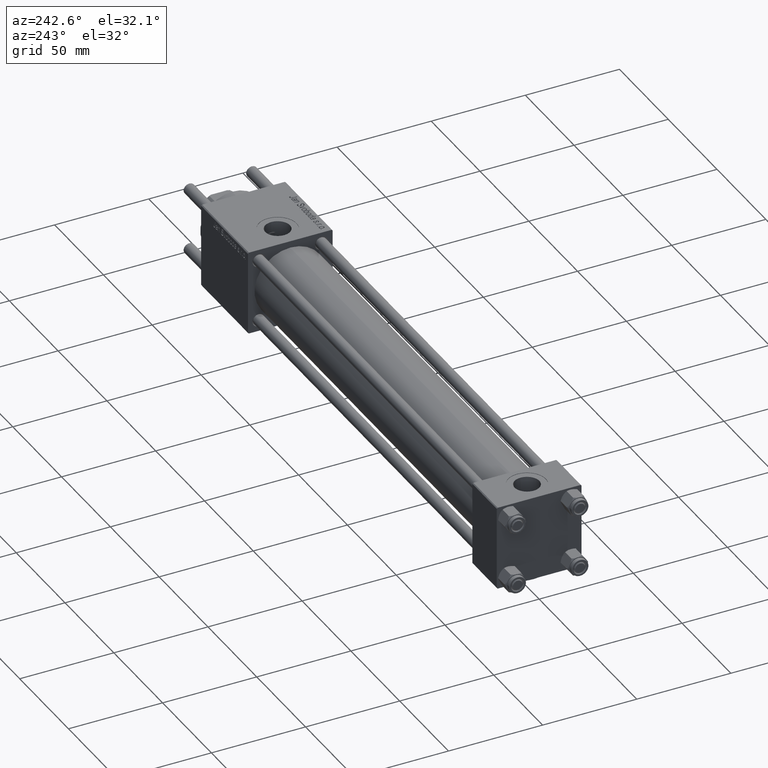
[diagram: clean part render]
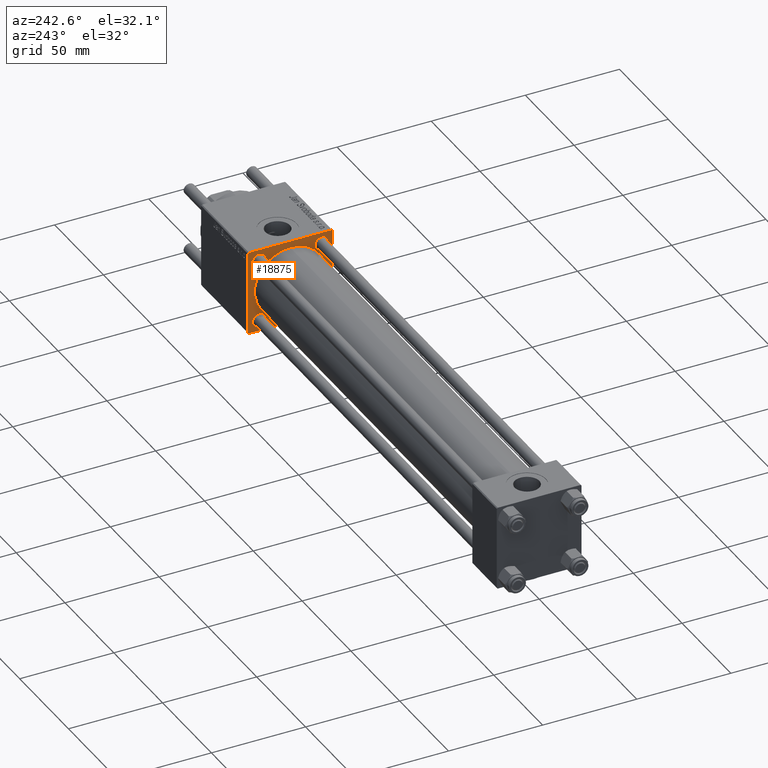
[diagram: same view with one face highlighted and labeled with its STEP entity id]
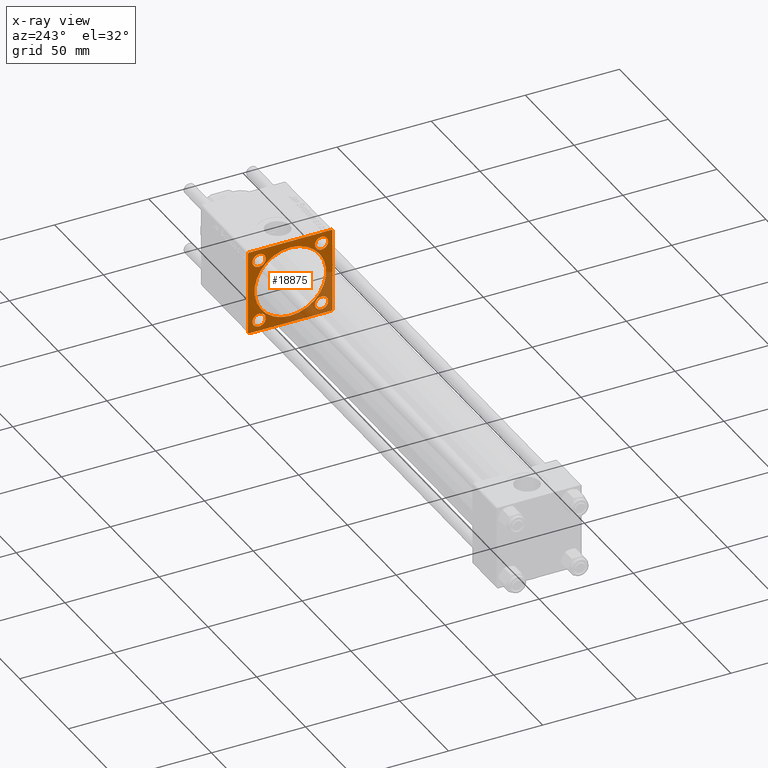
[diagram: x-ray of the same camera — body ghosted, the highlighted face saturated]
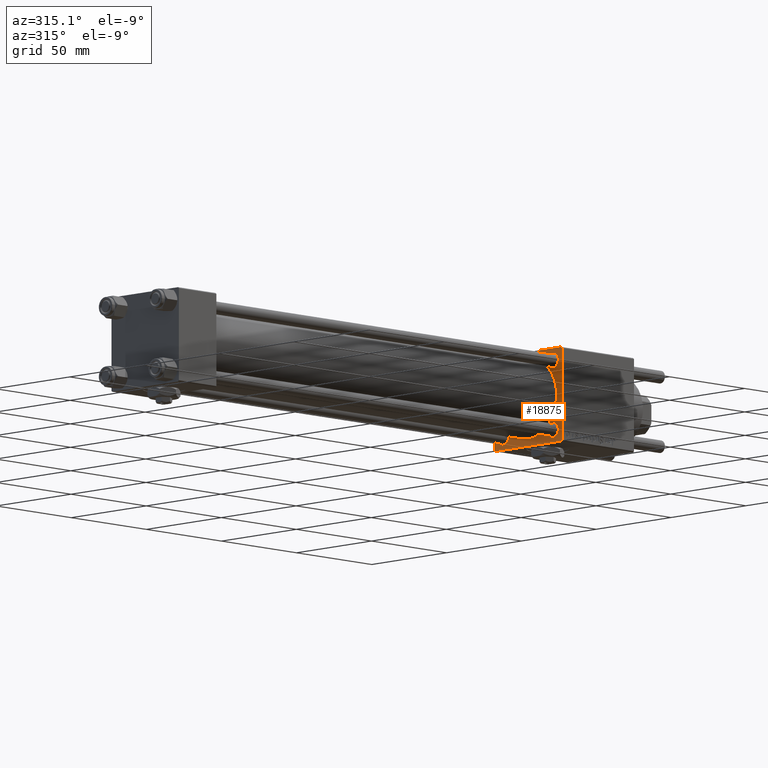
[diagram: same view with one face highlighted and labeled with its STEP entity id]
A machine part, auxiliary view. The second image highlights one B-rep face of the part: STEP entity #18875.
The next image is the same camera in x-ray: the body ghosted, the highlighted face saturated — about 27% of this face is hidden behind the body in this view.
A second angle (auxiliary view) of the same face is appended — the face is thin or edge-on in the first view.
In plain terms, the highlighted planar face has unit normal (-1, 0, 0).
Its self-contained STEP definition (entity closure, byte-faithful):
#164 = CARTESIAN_POINT ( 'NONE',  ( 255.0000000000000000, 16.59999999999999787, -16.60000000000000497 ) ) ;
#445 = ORIENTED_EDGE ( 'NONE', *, *, #53323, .T. ) ;
#859 = LINE ( 'NONE', #9082, #21070 ) ;
#1319 = DIRECTION ( 'NONE',  ( 1.000000000000000000, -0.000000000000000000, 0.000000000000000000 ) ) ;
#2730 = EDGE_CURVE ( 'NONE', #22916, #48878, #859, .T. ) ;
#3508 = LINE ( 'NONE', #39649, #49701 ) ;
#4279 = CIRCLE ( 'NONE', #39198, 3.500000000000031086 ) ;
#4411 = VECTOR ( 'NONE', #47732, 1000.000000000000000 ) ;
#4637 = EDGE_CURVE ( 'NONE', #17923, #50213, #43306, .T. ) ;
#5016 = CARTESIAN_POINT ( 'NONE',  ( 255.0000000000000000, 22.50000000000000355, 21.99999999999997513 ) ) ;
#6068 = FACE_BOUND ( 'NONE', #24643, .T. ) ;
#6419 = CARTESIAN_POINT ( 'NONE',  ( 255.0000000000000000, -16.59999999999999076, 20.10000000000003695 ) ) ;
#6470 = ORIENTED_EDGE ( 'NONE', *, *, #46499, .T. ) ;
#7194 = DIRECTION ( 'NONE',  ( 0.000000000000000000, 0.000000000000000000, 1.000000000000000000 ) ) ;
#7237 = CARTESIAN_POINT ( 'NONE',  ( 255.0000000000000000, -16.59999999999999076, 16.60000000000000853 ) ) ;
#7344 = CIRCLE ( 'NONE', #46105, 19.00000000000000000 ) ;
#8267 = DIRECTION ( 'NONE',  ( 0.000000000000000000, 0.000000000000000000, 1.000000000000000000 ) ) ;
#8756 = ORIENTED_EDGE ( 'NONE', *, *, #34313, .T. ) ;
#9082 = CARTESIAN_POINT ( 'NONE',  ( 255.0000000000000000, 22.50000000000000355, 22.50000000000000355 ) ) ;
#9461 = ORIENTED_EDGE ( 'NONE', *, *, #17966, .T. ) ;
#10768 = VERTEX_POINT ( 'NONE', #54679 ) ;
#11007 = AXIS2_PLACEMENT_3D ( 'NONE', #51292, #47628, #33393 ) ;
#11922 = CARTESIAN_POINT ( 'NONE',  ( 255.0000000000000000, 21.99999999999994671, -22.49999999999999645 ) ) ;
#12022 = LINE ( 'NONE', #49017, #33645 ) ;
#12435 = CARTESIAN_POINT ( 'NONE',  ( 255.0000000000000000, -16.59999999999999076, -20.10000000000000853 ) ) ;
#12928 = DIRECTION ( 'NONE',  ( 0.000000000000000000, -1.000000000000000000, -2.312964634635742957E-16 ) ) ;
#13772 = ORIENTED_EDGE ( 'NONE', *, *, #38086, .T. ) ;
#13855 = DIRECTION ( 'NONE',  ( 0.000000000000000000, 0.000000000000000000, 1.000000000000000000 ) ) ;
#13995 = CIRCLE ( 'NONE', #15936, 3.500000000000031086 ) ;
#14589 = FACE_BOUND ( 'NONE', #47883, .T. ) ;
#14712 = VERTEX_POINT ( 'NONE', #23897 ) ;
#14785 = EDGE_CURVE ( 'NONE', #57396, #43419, #58330, .T. ) ;
#15025 = ORIENTED_EDGE ( 'NONE', *, *, #41078, .T. ) ;
#15074 = ORIENTED_EDGE ( 'NONE', *, *, #25137, .F. ) ;
#15190 = PLANE ( 'NONE',  #11007 ) ;
#15592 = LINE ( 'NONE', #20738, #4411 ) ;
#15902 = ORIENTED_EDGE ( 'NONE', *, *, #21382, .T. ) ;
#15936 = AXIS2_PLACEMENT_3D ( 'NONE', #41999, #1319, #23509 ) ;
#16881 = DIRECTION ( 'NONE',  ( 0.000000000000000000, -0.7071067811865230368, 0.7071067811865721087 ) ) ;
#16957 = CARTESIAN_POINT ( 'NONE',  ( 255.0000000000000000, 22.50000000000000355, -21.99999999999992539 ) ) ;
#17022 = ORIENTED_EDGE ( 'NONE', *, *, #36216, .T. ) ;
#17169 = ORIENTED_EDGE ( 'NONE', *, *, #14785, .T. ) ;
#17803 = DIRECTION ( 'NONE',  ( 1.000000000000000000, -0.000000000000000000, 0.000000000000000000 ) ) ;
#17923 = VERTEX_POINT ( 'NONE', #58493 ) ;
#17966 = EDGE_CURVE ( 'NONE', #51979, #32269, #37131, .T. ) ;
#18236 = EDGE_CURVE ( 'NONE', #10768, #39429, #3508, .T. ) ;
#18630 = EDGE_LOOP ( 'NONE', ( #17169, #29936 ) ) ;
#18700 = DIRECTION ( 'NONE',  ( 0.000000000000000000, 0.000000000000000000, 1.000000000000000000 ) ) ;
#18791 = DIRECTION ( 'NONE',  ( 0.000000000000000000, 0.000000000000000000, -1.000000000000000000 ) ) ;
#18875 = ADVANCED_FACE ( 'NONE', ( #57030, #14589, #6068, #56726, #28555, #29157 ), #15190, .T. ) ;
#19942 = CARTESIAN_POINT ( 'NONE',  ( 255.0000000000000000, -2.602085213965210642E-15, 0.000000000000000000 ) ) ;
#20199 = AXIS2_PLACEMENT_3D ( 'NONE', #37243, #42082, #46039 ) ;
#20738 = CARTESIAN_POINT ( 'NONE',  ( 255.0000000000000000, -22.49999999999999645, 22.49999999999999289 ) ) ;
#20836 = DIRECTION ( 'NONE',  ( 0.000000000000000000, 0.000000000000000000, -1.000000000000000000 ) ) ;
#20855 = DIRECTION ( 'NONE',  ( 1.000000000000000000, -0.000000000000000000, 0.000000000000000000 ) ) ;
#21070 = VECTOR ( 'NONE', #18791, 1000.000000000000000 ) ;
#21147 = DIRECTION ( 'NONE',  ( 1.000000000000000000, 0.000000000000000000, 0.000000000000000000 ) ) ;
#21177 = EDGE_CURVE ( 'NONE', #40354, #31659, #13995, .T. ) ;
#21382 = EDGE_CURVE ( 'NONE', #31659, #40354, #4279, .T. ) ;
#22118 = CARTESIAN_POINT ( 'NONE',  ( 255.0000000000000000, -22.49999999999999645, 21.99999999999996447 ) ) ;
#22168 = VECTOR ( 'NONE', #42574, 1000.000000000000000 ) ;
#22488 = AXIS2_PLACEMENT_3D ( 'NONE', #19942, #24195, #20836 ) ;
#22916 = VERTEX_POINT ( 'NONE', #5016 ) ;
#22975 = CARTESIAN_POINT ( 'NONE',  ( 255.0000000000000000, 16.59999999999999787, -20.10000000000000853 ) ) ;
#23129 = CARTESIAN_POINT ( 'NONE',  ( 255.0000000000000000, -2.602085213965210642E-15, 19.00000000000000000 ) ) ;
#23308 = EDGE_LOOP ( 'NONE', ( #15025, #9461 ) ) ;
#23509 = DIRECTION ( 'NONE',  ( 0.000000000000000000, 0.000000000000000000, 1.000000000000000000 ) ) ;
#23897 = CARTESIAN_POINT ( 'NONE',  ( 255.0000000000000000, 16.59999999999999787, -13.10000000000000142 ) ) ;
#24086 = LINE ( 'NONE', #27751, #22168 ) ;
#24195 = DIRECTION ( 'NONE',  ( 1.000000000000000000, 0.000000000000000000, 0.000000000000000000 ) ) ;
#24361 = ORIENTED_EDGE ( 'NONE', *, *, #2730, .T. ) ;
#24643 = EDGE_LOOP ( 'NONE', ( #17022, #48390 ) ) ;
#24813 = CIRCLE ( 'NONE', #51920, 3.500000000000031086 ) ;
#25137 = EDGE_CURVE ( 'NONE', #39882, #39429, #15592, .T. ) ;
#25651 = DIRECTION ( 'NONE',  ( -0.000000000000000000, -0.7071067811865474617, -0.7071067811865474617 ) ) ;
#25689 = DIRECTION ( 'NONE',  ( 0.000000000000000000, 0.000000000000000000, -1.000000000000000000 ) ) ;
#26909 = CARTESIAN_POINT ( 'NONE',  ( 255.0000000000000000, -16.59999999999999076, 16.60000000000000853 ) ) ;
#27069 = VECTOR ( 'NONE', #42615, 1000.000000000000000 ) ;
#27751 = CARTESIAN_POINT ( 'NONE',  ( 255.0000000000000000, 22.25000000000061462, 22.24999999999937828 ) ) ;
#27756 = EDGE_CURVE ( 'NONE', #54318, #14712, #44207, .T. ) ;
#28555 = FACE_BOUND ( 'NONE', #18630, .T. ) ;
#28685 = LINE ( 'NONE', #37481, #27069 ) ;
#28983 = VECTOR ( 'NONE', #25651, 1000.000000000000114 ) ;
#29157 = FACE_OUTER_BOUND ( 'NONE', #34199, .T. ) ;
#29349 = DIRECTION ( 'NONE',  ( 0.000000000000000000, -1.000000000000000000, -7.709882115452476934E-17 ) ) ;
#29936 = ORIENTED_EDGE ( 'NONE', *, *, #30363, .T. ) ;
#30009 = EDGE_LOOP ( 'NONE', ( #48292, #6470 ) ) ;
#30273 = CARTESIAN_POINT ( 'NONE',  ( 255.0000000000000000, 16.59999999999999787, -16.60000000000000497 ) ) ;
#30363 = EDGE_CURVE ( 'NONE', #43419, #57396, #7344, .T. ) ;
#30428 = ORIENTED_EDGE ( 'NONE', *, *, #18236, .T. ) ;
#30753 = CARTESIAN_POINT ( 'NONE',  ( 255.0000000000000000, 16.59999999999999787, 16.60000000000000497 ) ) ;
#30919 = DIRECTION ( 'NONE',  ( 1.000000000000000000, -0.000000000000000000, 0.000000000000000000 ) ) ;
#31659 = VERTEX_POINT ( 'NONE', #44915 ) ;
#32269 = VERTEX_POINT ( 'NONE', #6419 ) ;
#33263 = CARTESIAN_POINT ( 'NONE',  ( 255.0000000000000000, -2.752562955852396712E-16, -19.00000000000000000 ) ) ;
#33393 = DIRECTION ( 'NONE',  ( -0.000000000000000000, 0.000000000000000000, 1.000000000000000000 ) ) ;
#33645 = VECTOR ( 'NONE', #12928, 1000.000000000000000 ) ;
#33824 = CARTESIAN_POINT ( 'NONE',  ( 255.0000000000000000, -22.49999999999999645, -21.99999999999995026 ) ) ;
#33860 = CARTESIAN_POINT ( 'NONE',  ( 255.0000000000000000, 22.24999999999996803, -22.24999999999996803 ) ) ;
#34199 = EDGE_LOOP ( 'NONE', ( #8756, #30428, #15074, #46217, #47135, #445, #24361, #13772 ) ) ;
#34313 = EDGE_CURVE ( 'NONE', #37694, #10768, #49003, .T. ) ;
#35124 = DIRECTION ( 'NONE',  ( 1.000000000000000000, -0.000000000000000000, 0.000000000000000000 ) ) ;
#35182 = EDGE_CURVE ( 'NONE', #37404, #40152, #12022, .T. ) ;
#36216 = EDGE_CURVE ( 'NONE', #14712, #54318, #56920, .T. ) ;
#36639 = AXIS2_PLACEMENT_3D ( 'NONE', #164, #59333, #18700 ) ;
#37131 = CIRCLE ( 'NONE', #40966, 3.500000000000031086 ) ;
#37243 = CARTESIAN_POINT ( 'NONE',  ( 255.0000000000000000, -16.59999999999999076, -16.60000000000000853 ) ) ;
#37404 = VERTEX_POINT ( 'NONE', #49577 ) ;
#37481 = CARTESIAN_POINT ( 'NONE',  ( 255.0000000000000000, -22.25000000000060751, 22.24999999999936762 ) ) ;
#37694 = VERTEX_POINT ( 'NONE', #11922 ) ;
#37788 = CARTESIAN_POINT ( 'NONE',  ( 255.0000000000000000, 16.59999999999999787, 13.09999999999997300 ) ) ;
#38086 = EDGE_CURVE ( 'NONE', #48878, #37694, #39607, .T. ) ;
#39198 = AXIS2_PLACEMENT_3D ( 'NONE', #30753, #44979, #8267 ) ;
#39325 = CARTESIAN_POINT ( 'NONE',  ( 255.0000000000000000, 22.50000000000000355, -22.49999999999999645 ) ) ;
#39357 = DIRECTION ( 'NONE',  ( 0.000000000000000000, 0.000000000000000000, 1.000000000000000000 ) ) ;
#39429 = VERTEX_POINT ( 'NONE', #33824 ) ;
#39526 = EDGE_CURVE ( 'NONE', #39882, #40152, #28685, .T. ) ;
#39607 = LINE ( 'NONE', #33860, #28983 ) ;
#39649 = CARTESIAN_POINT ( 'NONE',  ( 255.0000000000000000, -22.25000000000076383, -22.24999999999921840 ) ) ;
#39657 = CARTESIAN_POINT ( 'NONE',  ( 255.0000000000000000, -21.99999999999998224, 22.49999999999999289 ) ) ;
#39882 = VERTEX_POINT ( 'NONE', #22118 ) ;
#40152 = VERTEX_POINT ( 'NONE', #39657 ) ;
#40354 = VERTEX_POINT ( 'NONE', #37788 ) ;
#40966 = AXIS2_PLACEMENT_3D ( 'NONE', #7237, #30919, #58208 ) ;
#41078 = EDGE_CURVE ( 'NONE', #32269, #51979, #24813, .T. ) ;
#41999 = CARTESIAN_POINT ( 'NONE',  ( 255.0000000000000000, 16.59999999999999787, 16.60000000000000497 ) ) ;
#42082 = DIRECTION ( 'NONE',  ( 1.000000000000000000, -0.000000000000000000, 0.000000000000000000 ) ) ;
#42379 = VECTOR ( 'NONE', #29349, 1000.000000000000000 ) ;
#42574 = DIRECTION ( 'NONE',  ( 0.000000000000000000, 0.7071067811865279218, -0.7071067811865672237 ) ) ;
#42615 = DIRECTION ( 'NONE',  ( -0.000000000000000000, 0.7071067811865279218, 0.7071067811865672237 ) ) ;
#43306 = CIRCLE ( 'NONE', #20199, 3.500000000000003109 ) ;
#43419 = VERTEX_POINT ( 'NONE', #33263 ) ;
#44207 = CIRCLE ( 'NONE', #53903, 3.500000000000003109 ) ;
#44915 = CARTESIAN_POINT ( 'NONE',  ( 255.0000000000000000, 16.59999999999999787, 20.10000000000003340 ) ) ;
#44979 = DIRECTION ( 'NONE',  ( 1.000000000000000000, -0.000000000000000000, 0.000000000000000000 ) ) ;
#46039 = DIRECTION ( 'NONE',  ( 0.000000000000000000, 0.000000000000000000, 1.000000000000000000 ) ) ;
#46105 = AXIS2_PLACEMENT_3D ( 'NONE', #59321, #21147, #25689 ) ;
#46217 = ORIENTED_EDGE ( 'NONE', *, *, #39526, .T. ) ;
#46499 = EDGE_CURVE ( 'NONE', #50213, #17923, #49997, .T. ) ;
#47135 = ORIENTED_EDGE ( 'NONE', *, *, #35182, .F. ) ;
#47628 = DIRECTION ( 'NONE',  ( -1.000000000000000000, 0.000000000000000000, -0.000000000000000000 ) ) ;
#47732 = DIRECTION ( 'NONE',  ( 0.000000000000000000, 0.000000000000000000, -1.000000000000000000 ) ) ;
#47883 = EDGE_LOOP ( 'NONE', ( #15902, #51412 ) ) ;
#48292 = ORIENTED_EDGE ( 'NONE', *, *, #4637, .T. ) ;
#48390 = ORIENTED_EDGE ( 'NONE', *, *, #27756, .T. ) ;
#48750 = CARTESIAN_POINT ( 'NONE',  ( 255.0000000000000000, -16.59999999999999076, -16.60000000000000853 ) ) ;
#48878 = VERTEX_POINT ( 'NONE', #16957 ) ;
#49003 = LINE ( 'NONE', #39325, #42379 ) ;
#49017 = CARTESIAN_POINT ( 'NONE',  ( 255.0000000000000000, 22.50000000000000355, 22.50000000000000355 ) ) ;
#49577 = CARTESIAN_POINT ( 'NONE',  ( 255.0000000000000000, 22.00000000000000355, 22.50000000000000355 ) ) ;
#49701 = VECTOR ( 'NONE', #16881, 1000.000000000000000 ) ;
#49997 = CIRCLE ( 'NONE', #53904, 3.500000000000003109 ) ;
#50213 = VERTEX_POINT ( 'NONE', #12435 ) ;
#51292 = CARTESIAN_POINT ( 'NONE',  ( 255.0000000000000000, 0.000000000000000000, 0.000000000000000000 ) ) ;
#51412 = ORIENTED_EDGE ( 'NONE', *, *, #21177, .T. ) ;
#51920 = AXIS2_PLACEMENT_3D ( 'NONE', #26909, #17803, #13855 ) ;
#51979 = VERTEX_POINT ( 'NONE', #55104 ) ;
#53323 = EDGE_CURVE ( 'NONE', #37404, #22916, #24086, .T. ) ;
#53903 = AXIS2_PLACEMENT_3D ( 'NONE', #30273, #20855, #39357 ) ;
#53904 = AXIS2_PLACEMENT_3D ( 'NONE', #48750, #35124, #7194 ) ;
#54318 = VERTEX_POINT ( 'NONE', #22975 ) ;
#54679 = CARTESIAN_POINT ( 'NONE',  ( 255.0000000000000000, -21.99999999999998224, -22.50000000000000000 ) ) ;
#55104 = CARTESIAN_POINT ( 'NONE',  ( 255.0000000000000000, -16.59999999999999076, 13.09999999999997655 ) ) ;
#56726 = FACE_BOUND ( 'NONE', #30009, .T. ) ;
#56920 = CIRCLE ( 'NONE', #36639, 3.500000000000003109 ) ;
#57030 = FACE_BOUND ( 'NONE', #23308, .T. ) ;
#57396 = VERTEX_POINT ( 'NONE', #23129 ) ;
#58208 = DIRECTION ( 'NONE',  ( 0.000000000000000000, 0.000000000000000000, 1.000000000000000000 ) ) ;
#58330 = CIRCLE ( 'NONE', #22488, 19.00000000000000000 ) ;
#58493 = CARTESIAN_POINT ( 'NONE',  ( 255.0000000000000000, -16.59999999999999076, -13.10000000000000320 ) ) ;
#59321 = CARTESIAN_POINT ( 'NONE',  ( 255.0000000000000000, -2.602085213965210642E-15, 0.000000000000000000 ) ) ;
#59333 = DIRECTION ( 'NONE',  ( 1.000000000000000000, -0.000000000000000000, 0.000000000000000000 ) ) ;